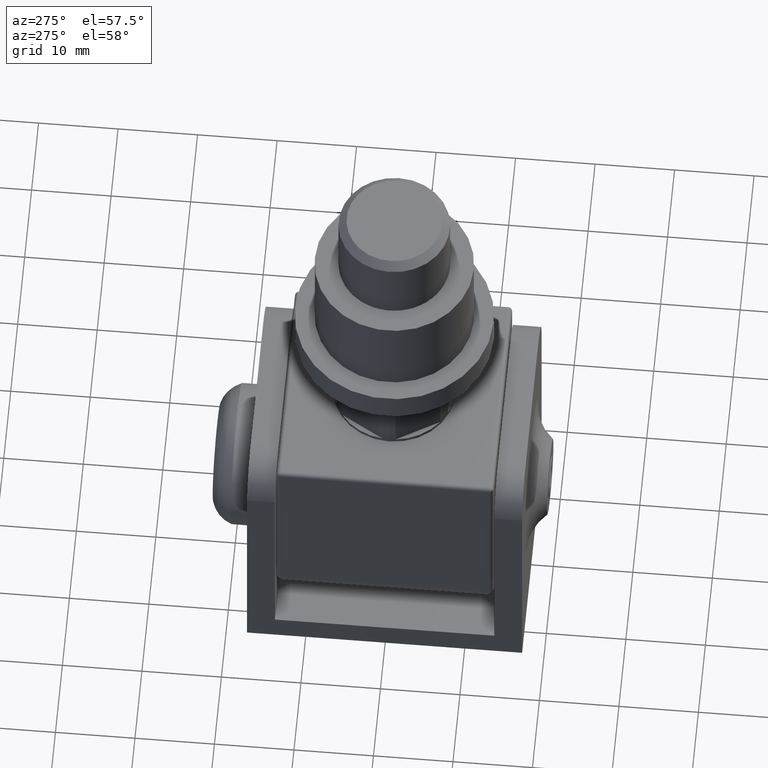
[diagram: clean part render]
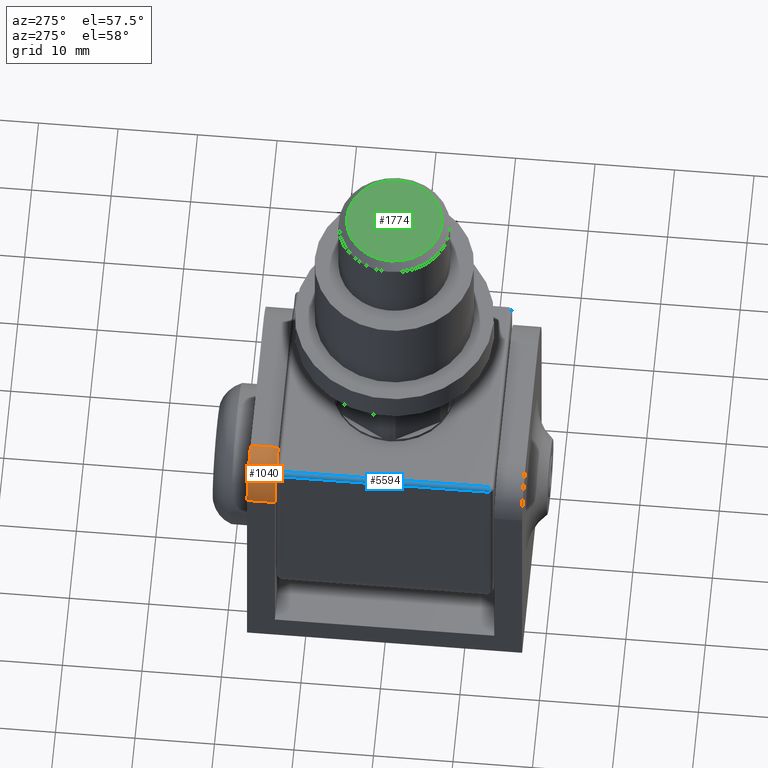
[diagram: same view with three faces highlighted in distinct colors, each labeled with its STEP entity id]
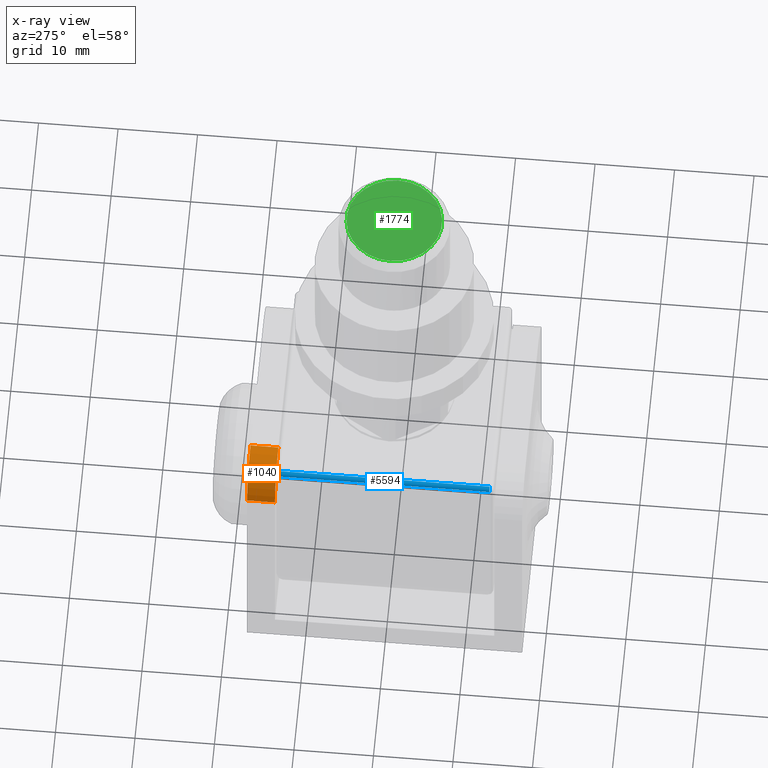
[diagram: x-ray of the same camera — body ghosted, the three highlighted faces saturated]
A machine part, auxiliary view with three faces highlighted in distinct colors.
The next image is the same camera in x-ray (body ghosted, the three faces saturated) — at least one of them is partly hidden behind the body in this view.
Their STEP definitions:

[orange] entity #1040 — the highlighted cylindrical surface (partial cylindrical patch) has radius 5 mm, axis along (0, 1, 0).
#1 = DIRECTION ( 'NONE',  ( 1.040834085586084059E-15, 0.000000000000000000, -1.000000000000000000 ) ) ;
#426 = CARTESIAN_POINT ( 'NONE',  ( -9.000000000000000000, 13.79999999999999893, 12.90000000000000213 ) ) ;
#575 = CIRCLE ( 'NONE', #13283, 5.000000000000000888 ) ;
#938 = DIRECTION ( 'NONE',  ( -0.000000000000000000, 1.000000000000000000, -0.000000000000000000 ) ) ;
#1040 = ADVANCED_FACE ( 'NONE', ( #6932 ), #10872, .T. ) ;
#1440 = AXIS2_PLACEMENT_3D ( 'NONE', #13498, #12744, #1 ) ;
#1629 = VERTEX_POINT ( 'NONE', #4950 ) ;
#2317 = VERTEX_POINT ( 'NONE', #9241 ) ;
#2784 = ORIENTED_EDGE ( 'NONE', *, *, #10300, .F. ) ;
#3563 = CARTESIAN_POINT ( 'NONE',  ( -14.00000000000000000, 13.79999999999999893, 12.90000000000000213 ) ) ;
#4950 = CARTESIAN_POINT ( 'NONE',  ( -9.000000000000000000, 13.79999999999999893, 17.89999999999999858 ) ) ;
#4975 = LINE ( 'NONE', #8765, #11136 ) ;
#5374 = CARTESIAN_POINT ( 'NONE',  ( -9.000000000000000000, 17.30000000000000071, 17.89999999999999858 ) ) ;
#5383 = ORIENTED_EDGE ( 'NONE', *, *, #13037, .F. ) ;
#6519 = LINE ( 'NONE', #7896, #11770 ) ;
#6932 = FACE_OUTER_BOUND ( 'NONE', #12769, .T. ) ;
#7579 = DIRECTION ( 'NONE',  ( 0.000000000000000000, 0.000000000000000000, 1.000000000000000000 ) ) ;
#7896 = CARTESIAN_POINT ( 'NONE',  ( -14.00000000000000000, 17.30000000000000071, 12.90000000000000213 ) ) ;
#8046 = CARTESIAN_POINT ( 'NONE',  ( -9.000000000000000000, 13.79999999999999893, 12.90000000000000213 ) ) ;
#8097 = ORIENTED_EDGE ( 'NONE', *, *, #13952, .F. ) ;
#8642 = DIRECTION ( 'NONE',  ( 0.000000000000000000, 1.000000000000000000, 0.000000000000000000 ) ) ;
#8765 = CARTESIAN_POINT ( 'NONE',  ( -9.000000000000000000, 13.79999999999999893, 17.89999999999999858 ) ) ;
#9241 = CARTESIAN_POINT ( 'NONE',  ( -14.00000000000000000, 17.30000000000000071, 12.90000000000000213 ) ) ;
#9395 = CIRCLE ( 'NONE', #1440, 5.000000000000000888 ) ;
#9829 = DIRECTION ( 'NONE',  ( 0.000000000000000000, -1.000000000000000000, 0.000000000000000000 ) ) ;
#10276 = AXIS2_PLACEMENT_3D ( 'NONE', #426, #8642, #7579 ) ;
#10300 = EDGE_CURVE ( 'NONE', #14559, #1629, #4975, .T. ) ;
#10872 = CYLINDRICAL_SURFACE ( 'NONE', #10276, 5.000000000000000888 ) ;
#11136 = VECTOR ( 'NONE', #9829, 1000.000000000000000 ) ;
#11770 = VECTOR ( 'NONE', #938, 1000.000000000000000 ) ;
#12306 = VERTEX_POINT ( 'NONE', #3563 ) ;
#12659 = DIRECTION ( 'NONE',  ( 0.000000000000000000, 0.000000000000000000, 1.000000000000000000 ) ) ;
#12744 = DIRECTION ( 'NONE',  ( -0.000000000000000000, 1.000000000000000000, 9.691192603222388261E-17 ) ) ;
#12769 = EDGE_LOOP ( 'NONE', ( #13377, #8097, #5383, #2784 ) ) ;
#13037 = EDGE_CURVE ( 'NONE', #1629, #12306, #575, .T. ) ;
#13283 = AXIS2_PLACEMENT_3D ( 'NONE', #8046, #13734, #12659 ) ;
#13377 = ORIENTED_EDGE ( 'NONE', *, *, #14934, .F. ) ;
#13498 = CARTESIAN_POINT ( 'NONE',  ( -9.000000000000000000, 17.30000000000000071, 12.90000000000000213 ) ) ;
#13734 = DIRECTION ( 'NONE',  ( -0.000000000000000000, -1.000000000000000000, -0.000000000000000000 ) ) ;
#13952 = EDGE_CURVE ( 'NONE', #12306, #2317, #6519, .T. ) ;
#14559 = VERTEX_POINT ( 'NONE', #5374 ) ;
#14934 = EDGE_CURVE ( 'NONE', #2317, #14559, #9395, .T. ) ;

[blue] entity #5594 — the highlighted cylindrical surface (edge-blend (fillet) strip) has radius 0.5 mm, axis along (0, -1, 0).
#83 = VERTEX_POINT ( 'NONE', #1316 ) ;
#527 = VERTEX_POINT ( 'NONE', #7385 ) ;
#1316 = CARTESIAN_POINT ( 'NONE',  ( -13.75000000000000000, -13.15000000000000036, 12.60000000000000142 ) ) ;
#1852 = CARTESIAN_POINT ( 'NONE',  ( -13.75000000000000000, 13.65000000000000036, 12.60000000000000142 ) ) ;
#2106 = CARTESIAN_POINT ( 'NONE',  ( -13.25000000000000000, -13.15000000000000036, 12.60000000000000142 ) ) ;
#3240 = DIRECTION ( 'NONE',  ( -0.000000000000000000, 1.000000000000000000, -0.000000000000000000 ) ) ;
#3478 = DIRECTION ( 'NONE',  ( 0.000000000000000000, 0.000000000000000000, -1.000000000000000000 ) ) ;
#4318 = EDGE_CURVE ( 'NONE', #83, #10394, #8727, .T. ) ;
#4362 = DIRECTION ( 'NONE',  ( 0.000000000000000000, -1.000000000000000000, 0.000000000000000000 ) ) ;
#5186 = LINE ( 'NONE', #5418, #8139 ) ;
#5418 = CARTESIAN_POINT ( 'NONE',  ( -13.25000000000000000, 13.65000000000000036, 13.10000000000000142 ) ) ;
#5557 = DIRECTION ( 'NONE',  ( 0.000000000000000000, 0.000000000000000000, 1.000000000000000000 ) ) ;
#5594 = ADVANCED_FACE ( 'NONE', ( #13469 ), #11110, .T. ) ;
#5611 = EDGE_CURVE ( 'NONE', #12044, #10394, #12191, .T. ) ;
#5679 = EDGE_LOOP ( 'NONE', ( #6594, #10153, #10185, #11586 ) ) ;
#5702 = DIRECTION ( 'NONE',  ( 0.000000000000000000, -1.000000000000000000, 0.000000000000000000 ) ) ;
#5729 = AXIS2_PLACEMENT_3D ( 'NONE', #8986, #11327, #5557 ) ;
#5946 = AXIS2_PLACEMENT_3D ( 'NONE', #2106, #11408, #3478 ) ;
#6594 = ORIENTED_EDGE ( 'NONE', *, *, #5611, .T. ) ;
#6861 = EDGE_CURVE ( 'NONE', #12044, #527, #5186, .T. ) ;
#7385 = CARTESIAN_POINT ( 'NONE',  ( -13.25000000000000000, -13.15000000000000036, 13.10000000000000142 ) ) ;
#7946 = CIRCLE ( 'NONE', #5946, 0.5000000000000004441 ) ;
#8014 = EDGE_CURVE ( 'NONE', #527, #83, #7946, .T. ) ;
#8139 = VECTOR ( 'NONE', #4362, 1000.000000000000000 ) ;
#8727 = LINE ( 'NONE', #1852, #10867 ) ;
#8986 = CARTESIAN_POINT ( 'NONE',  ( -13.25000000000000000, 13.15000000000000036, 12.60000000000000142 ) ) ;
#10095 = CARTESIAN_POINT ( 'NONE',  ( -13.75000000000000000, 13.15000000000000036, 12.60000000000000142 ) ) ;
#10153 = ORIENTED_EDGE ( 'NONE', *, *, #4318, .F. ) ;
#10185 = ORIENTED_EDGE ( 'NONE', *, *, #8014, .F. ) ;
#10215 = DIRECTION ( 'NONE',  ( 0.000000000000000000, 0.000000000000000000, -1.000000000000000000 ) ) ;
#10394 = VERTEX_POINT ( 'NONE', #10095 ) ;
#10867 = VECTOR ( 'NONE', #3240, 1000.000000000000000 ) ;
#11110 = CYLINDRICAL_SURFACE ( 'NONE', #11744, 0.5000000000000004441 ) ;
#11327 = DIRECTION ( 'NONE',  ( -0.000000000000000000, -1.000000000000000000, 0.000000000000000000 ) ) ;
#11408 = DIRECTION ( 'NONE',  ( 0.000000000000000000, -1.000000000000000000, 0.000000000000000000 ) ) ;
#11586 = ORIENTED_EDGE ( 'NONE', *, *, #6861, .F. ) ;
#11744 = AXIS2_PLACEMENT_3D ( 'NONE', #12532, #5702, #10215 ) ;
#12044 = VERTEX_POINT ( 'NONE', #14426 ) ;
#12191 = CIRCLE ( 'NONE', #5729, 0.5000000000000004441 ) ;
#12532 = CARTESIAN_POINT ( 'NONE',  ( -13.25000000000000000, 13.65000000000000036, 12.60000000000000142 ) ) ;
#13469 = FACE_OUTER_BOUND ( 'NONE', #5679, .T. ) ;
#14426 = CARTESIAN_POINT ( 'NONE',  ( -13.25000000000000000, 13.15000000000000036, 13.10000000000000142 ) ) ;

[green] entity #1774 — the highlighted planar face has unit normal (0, 0, 1).
#73 = DIRECTION ( 'NONE',  ( 1.000000000000000000, 0.000000000000000000, 0.000000000000000000 ) ) ;
#1057 = VERTEX_POINT ( 'NONE', #1494 ) ;
#1494 = CARTESIAN_POINT ( 'NONE',  ( 5.999999999999998224, 0.000000000000000000, 52.60000000000000142 ) ) ;
#1774 = ADVANCED_FACE ( 'NONE', ( #9828 ), #12335, .T. ) ;
#2182 = ORIENTED_EDGE ( 'NONE', *, *, #10647, .T. ) ;
#3250 = DIRECTION ( 'NONE',  ( 1.000000000000000000, 0.000000000000000000, -0.000000000000000000 ) ) ;
#4311 = DIRECTION ( 'NONE',  ( 0.000000000000000000, 0.000000000000000000, 1.000000000000000000 ) ) ;
#4565 = AXIS2_PLACEMENT_3D ( 'NONE', #13507, #4311, #3250 ) ;
#6068 = CIRCLE ( 'NONE', #12418, 5.999999999999998224 ) ;
#7025 = DIRECTION ( 'NONE',  ( 0.000000000000000000, 0.000000000000000000, 1.000000000000000000 ) ) ;
#9828 = FACE_OUTER_BOUND ( 'NONE', #10310, .T. ) ;
#10310 = EDGE_LOOP ( 'NONE', ( #2182 ) ) ;
#10647 = EDGE_CURVE ( 'NONE', #1057, #1057, #6068, .T. ) ;
#12335 = PLANE ( 'NONE',  #4565 ) ;
#12418 = AXIS2_PLACEMENT_3D ( 'NONE', #13946, #7025, #73 ) ;
#13507 = CARTESIAN_POINT ( 'NONE',  ( 0.000000000000000000, 0.000000000000000000, 52.60000000000000142 ) ) ;
#13946 = CARTESIAN_POINT ( 'NONE',  ( 0.000000000000000000, 0.000000000000000000, 52.60000000000000142 ) ) ;